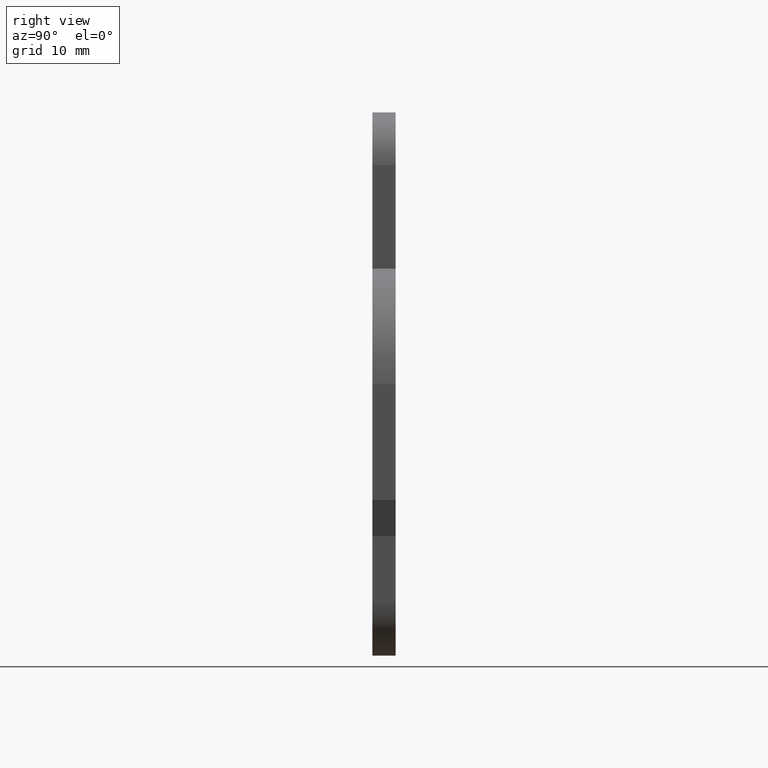
[diagram: clean part render]
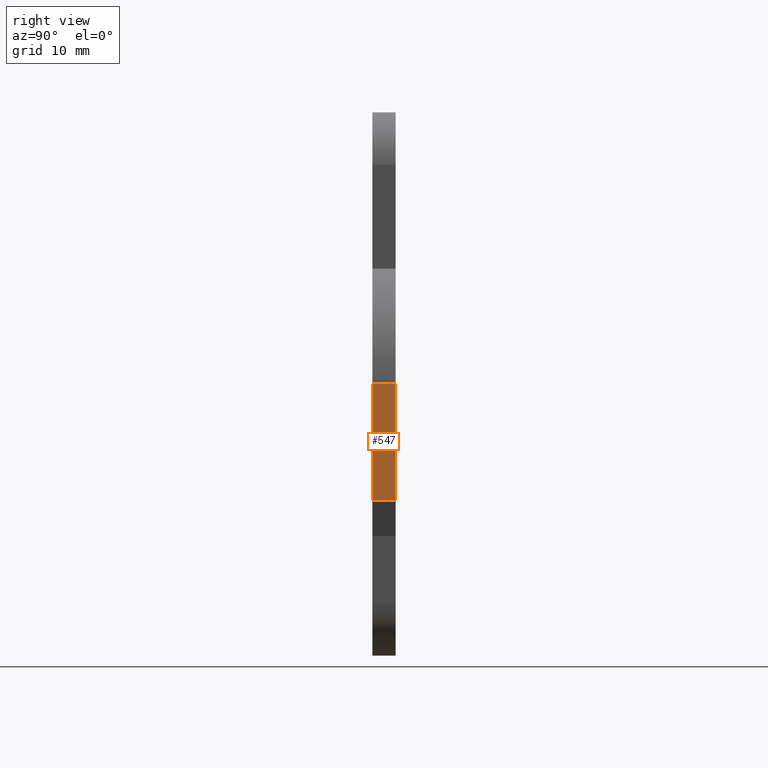
[diagram: same view with one face highlighted and labeled with its STEP entity id]
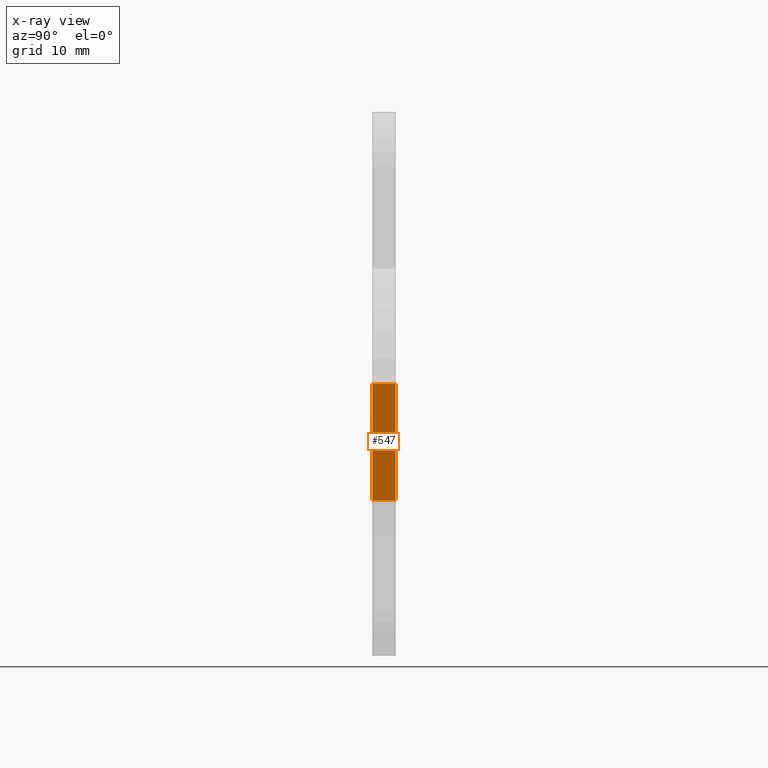
[diagram: x-ray of the same camera — body ghosted, the highlighted face saturated]
A machine part, right view. The second image highlights one B-rep face of the part: STEP entity #547.
The next image is the same camera in x-ray: the body ghosted, the highlighted face saturated — about 0% of this face is hidden behind the body in this view.
In plain terms, the highlighted face is a freeform B-spline surface patch.
Its self-contained STEP definition (entity closure, byte-faithful):
#104=CARTESIAN_POINT('',(9.0,0.0,0.0));
#105=VERTEX_POINT('',#104);
#111=CARTESIAN_POINT('',(9.0,0.0,-16.0));
#112=VERTEX_POINT('',#111);
#113=CARTESIAN_POINT('',(9.0,0.0,-16.0));
#114=CARTESIAN_POINT('',(9.0,0.0,0.0));
#115=QUASI_UNIFORM_CURVE('',1,(#113,#114),.UNSPECIFIED.,.F.,.U.);
#116=EDGE_CURVE('',#112,#105,#115,.T.);
#308=CARTESIAN_POINT('',(9.0,-3.200000000000000,-16.0));
#309=VERTEX_POINT('',#308);
#315=CARTESIAN_POINT('',(9.0,-3.200000000000000,0.0));
#316=VERTEX_POINT('',#315);
#317=CARTESIAN_POINT('',(9.0,-3.200000000000000,-16.0));
#318=CARTESIAN_POINT('',(9.0,-3.200000000000000,0.0));
#319=QUASI_UNIFORM_CURVE('',1,(#317,#318),.UNSPECIFIED.,.F.,.U.);
#320=EDGE_CURVE('',#309,#316,#319,.T.);
#524=CARTESIAN_POINT('',(9.0,-3.200000000000000,0.0));
#525=CARTESIAN_POINT('',(9.0,0.0,0.0));
#526=QUASI_UNIFORM_CURVE('',1,(#524,#525),.UNSPECIFIED.,.F.,.U.);
#527=EDGE_CURVE('',#316,#105,#526,.T.);
#532=CARTESIAN_POINT('',(9.0,-3.359840053876400,-16.799199968988891));
#533=CARTESIAN_POINT('',(9.0,-3.359840053876400,0.799200398142338));
#534=CARTESIAN_POINT('',(9.0,0.159840082486629,-16.799199968988891));
#535=CARTESIAN_POINT('',(9.0,0.159840082486629,0.799200398142338));
#536=B_SPLINE_SURFACE_WITH_KNOTS('',1,1,((#532,#534),(#533,#535)),.UNSPECIFIED.,.F.,.F.,.U.,(2,2),(2,2),(0.0,17.598400367131230),(0.0,3.519680136363029),.UNSPECIFIED.);
#537=ORIENTED_EDGE('',*,*,#116,.T.);
#538=ORIENTED_EDGE('',*,*,#527,.F.);
#539=ORIENTED_EDGE('',*,*,#320,.F.);
#540=CARTESIAN_POINT('',(9.0,-3.200000000000000,-16.0));
#541=CARTESIAN_POINT('',(9.0,0.0,-16.0));
#542=QUASI_UNIFORM_CURVE('',1,(#540,#541),.UNSPECIFIED.,.F.,.U.);
#543=EDGE_CURVE('',#309,#112,#542,.T.);
#544=ORIENTED_EDGE('',*,*,#543,.T.);
#545=EDGE_LOOP('',(#537,#538,#539,#544));
#546=FACE_OUTER_BOUND('',#545,.T.);
#547=ADVANCED_FACE('',(#546),#536,.F.);